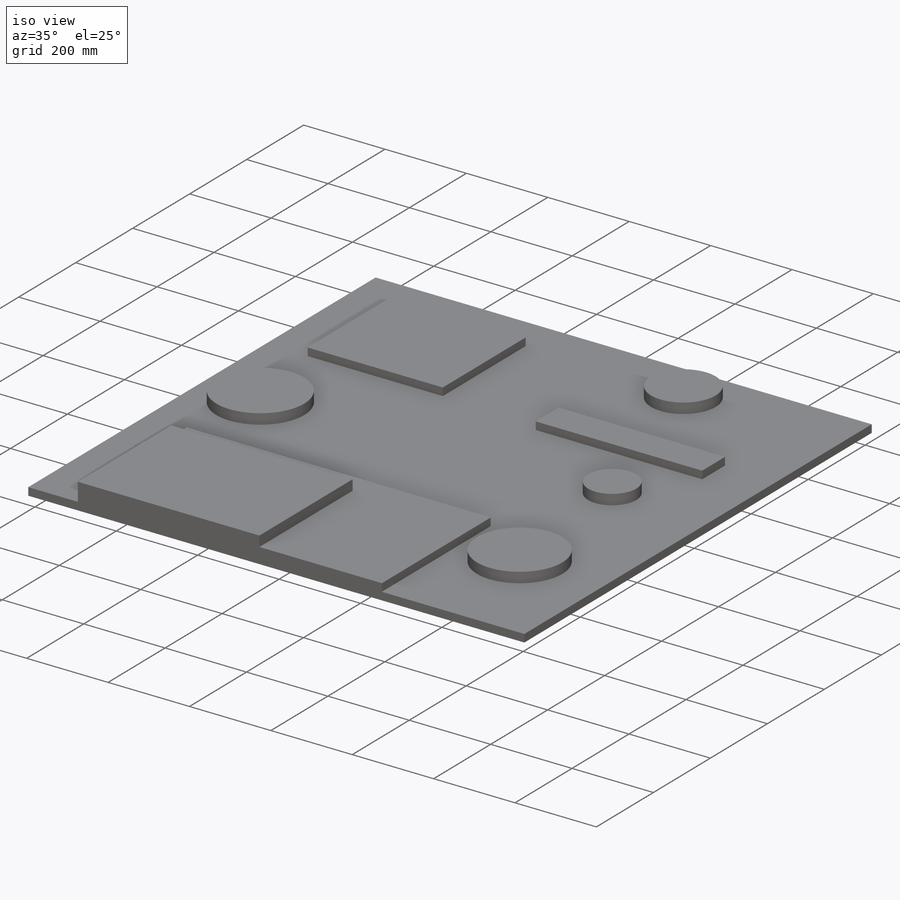
[diagram: iso view]
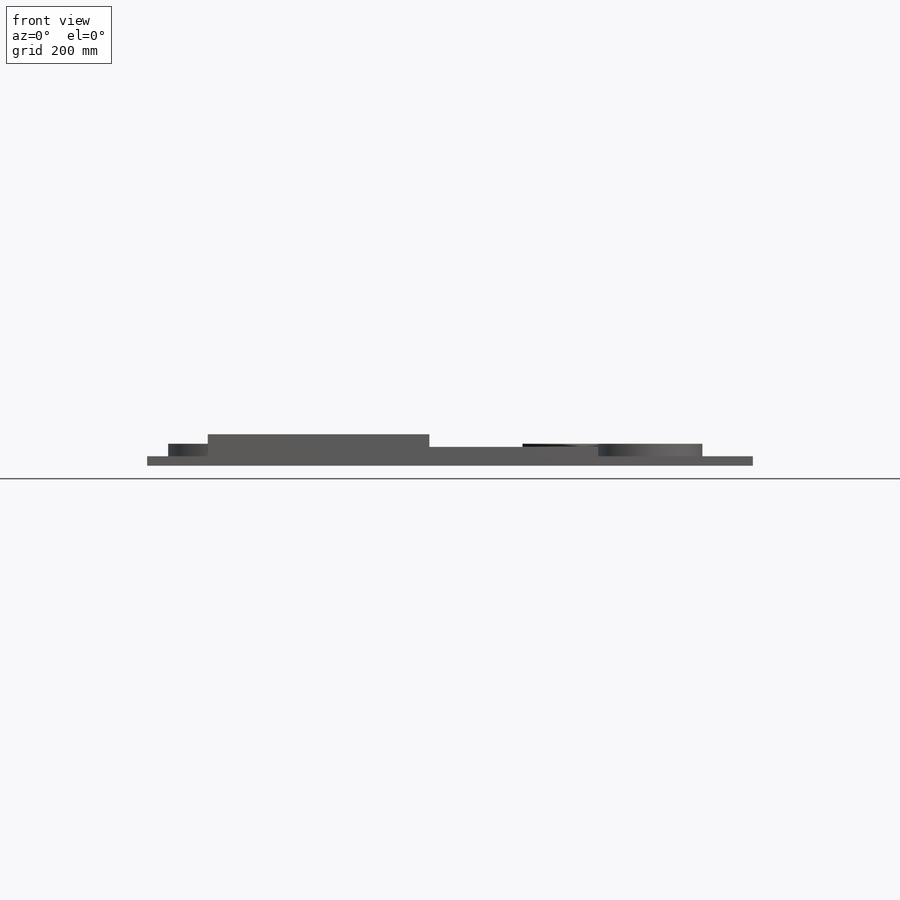
[diagram: front view]
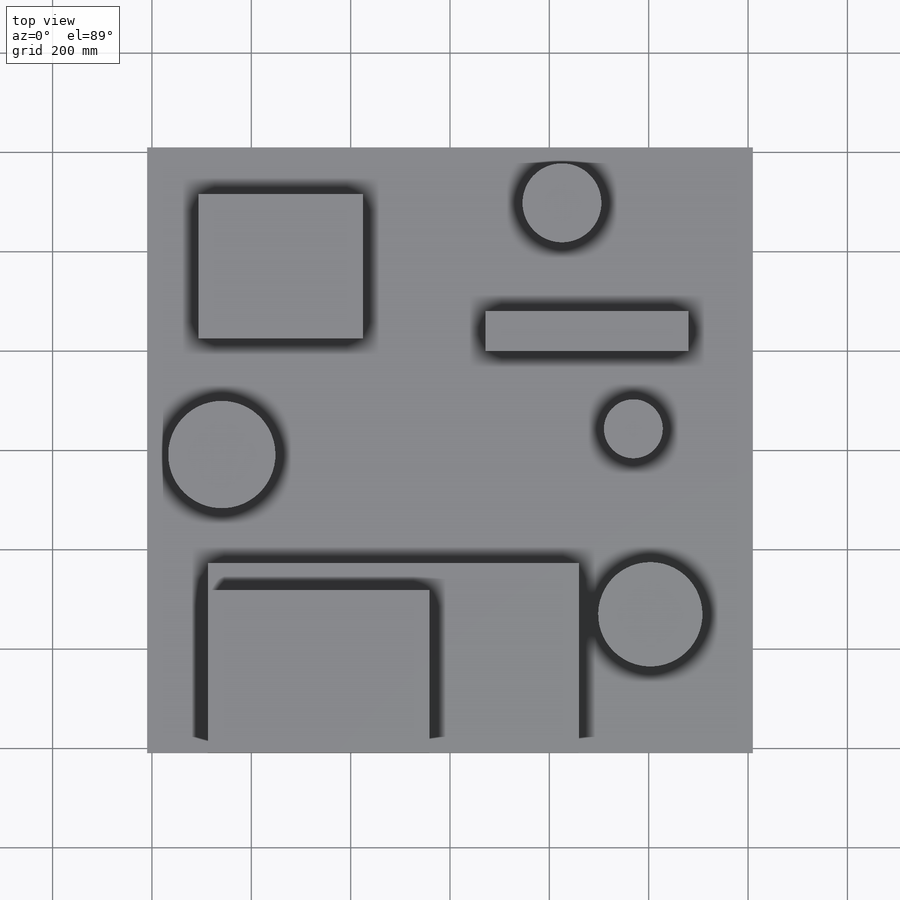
[diagram: top view]
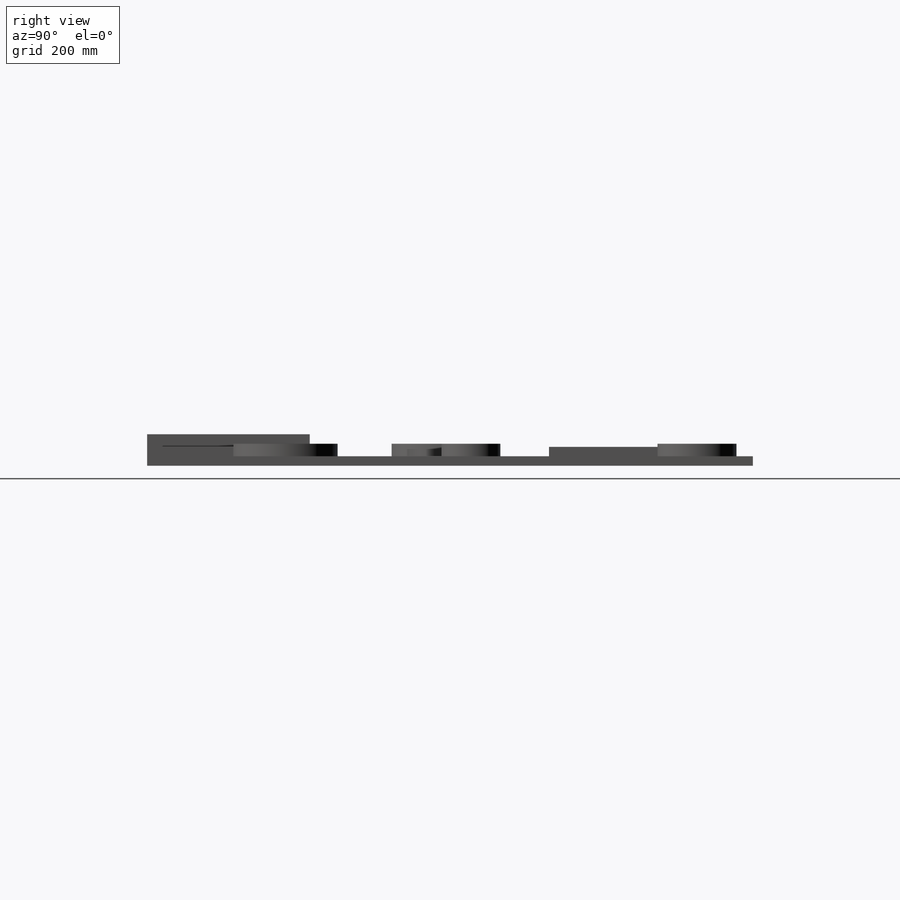
[diagram: right view]
SOLIDWORKS PART (.sldprt)
format: sldprt  version: not decoded by parser v0  size: 367,104 bytes
history: native  units: mm
features: sketch x4, extrude x4, material x1 (+14 scaffold rows collapsed)
feature tree (23):
  scaffold x14  (default folders/planes/origin — collapsed)
  material  "Material <not specified>"
  sketch  "Sketch1"  dims[D1=1219.2mm D2=1219.2mm]
  extrude  "Extrude1"  Depth=19.05mm
  sketch  "Sketch2"
  extrude  "Extrude2"  Depth=19.05mm
  sketch  "Sketch3"
  extrude  "Extrude3"  Depth=25.4mm
  sketch  "Sketch4"
  extrude  "Extrude4"  Depth=25.4mm
decode coverage: 5 of 8 modeling features carry decoded parameters
note: suppression state not decoded; provenance and decode notes live in map.json
